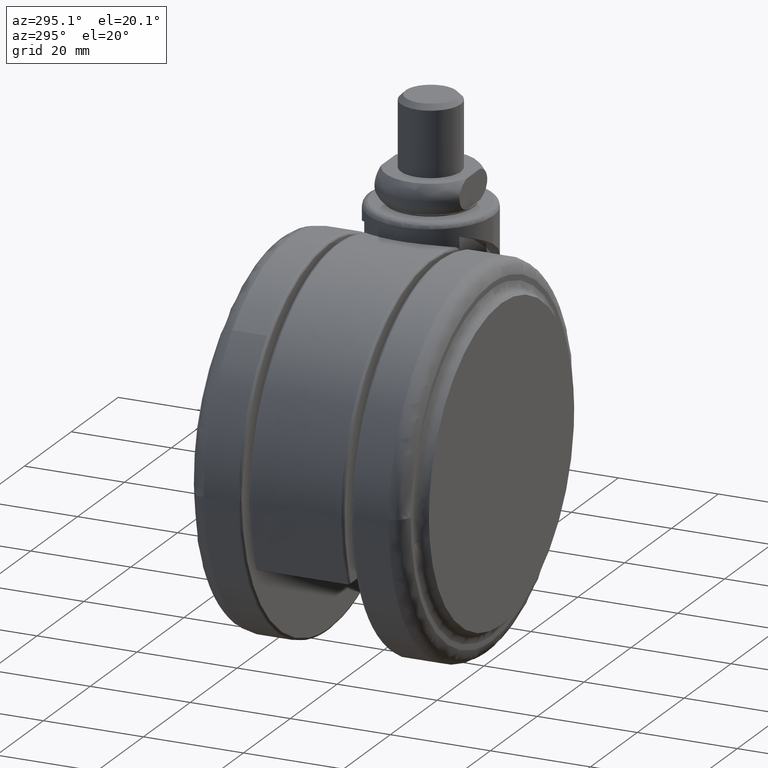
[diagram: clean part render]
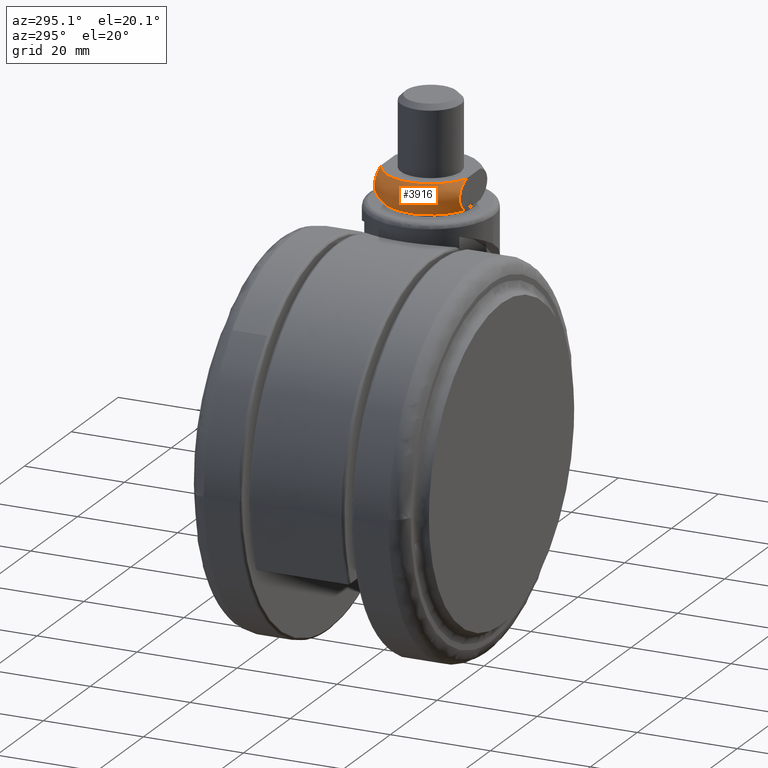
[diagram: same view with one face highlighted and labeled with its STEP entity id]
A machine part, auxiliary view. The second image highlights one B-rep face of the part: STEP entity #3916.
In plain terms, the highlighted face is a freeform B-spline surface patch.
Its self-contained STEP definition (entity closure, byte-faithful):
#3673=CARTESIAN_POINT('',(-2.958037778009130,8.500000000000000,6.500000005047590));
#3674=VERTEX_POINT('',#3673);
#3680=CARTESIAN_POINT('',(-2.958037778009625,-8.499999999999911,6.499999999999620));
#3681=VERTEX_POINT('',#3680);
#3682=CARTESIAN_POINT('',(-2.958037778009625,-8.499999999999911,6.499999999999620));
#3683=CARTESIAN_POINT('',(-3.505191640945327,-8.309661604369689,6.500000000456753));
#3684=CARTESIAN_POINT('',(-4.456791574253676,-7.871449562081987,6.500000001251817));
#3685=CARTESIAN_POINT('',(-5.603591382843556,-7.077992358055911,6.500000002209936));
#3686=CARTESIAN_POINT('',(-6.567442417667633,-6.197171119240892,6.500000003015228));
#3687=CARTESIAN_POINT('',(-7.326306664548474,-5.278412197983465,6.500000003649253));
#3688=CARTESIAN_POINT('',(-8.024343454167111,-4.140781605865873,6.500000004232393));
#3689=CARTESIAN_POINT('',(-8.488137373949472,-3.074735887196934,6.500000004620105));
#3690=CARTESIAN_POINT('',(-8.842811778932871,-1.818496998494626,6.500000004917118));
#3691=CARTESIAN_POINT('',(-9.049761467326716,-0.350737382126485,6.500000005082399));
#3692=CARTESIAN_POINT('',(-8.964676692575551,1.249957576164630,6.500000005036982));
#3693=CARTESIAN_POINT('',(-8.597027895506502,2.774549533199301,6.500000005049102));
#3694=CARTESIAN_POINT('',(-8.104555607089273,3.985623964878834,6.500000005047969));
#3695=CARTESIAN_POINT('',(-7.325349404209156,5.312510051283311,6.500000005047355));
#3696=CARTESIAN_POINT('',(-6.261878011762858,6.550612389649610,6.500000005047541));
#3697=CARTESIAN_POINT('',(-4.743226544974553,7.725153657144978,6.500000005047991));
#3698=CARTESIAN_POINT('',(-3.614657331387783,8.271644136897930,6.500000005046799));
#3699=CARTESIAN_POINT('',(-2.958037778009130,8.500000000000000,6.500000005047590));
#3700=B_SPLINE_CURVE_WITH_KNOTS('',3,(#3682,#3683,#3684,#3685,#3686,#3687,#3688,#3689,#3690,#3691,#3692,#3693,#3694,#3695,#3696,#3697,#3698,#3699),.UNSPECIFIED.,.F.,.U.,(4,1,1,1,1,1,1,1,1,1,1,1,1,1,1,4),(0.000000192246205,1.737942532596673,3.128360514341786,4.171166189166815,5.648475213840698,6.691283131285266,8.168573489920295,9.124498555448156,10.601803637032910,12.600432010111859,13.903903936706360,15.294322892246131,16.510918853109320,18.509625382620261,20.160726363808820,22.246291718154069),.UNSPECIFIED.);
#3701=EDGE_CURVE('',#3681,#3674,#3700,.T.);
#3724=CARTESIAN_POINT('',(-2.958037795423370,8.500000000000000,0.499999999999886));
#3725=VERTEX_POINT('',#3724);
#3731=CARTESIAN_POINT('',(-2.958037795423370,8.500000000000000,0.499999999999886));
#3732=CARTESIAN_POINT('',(-3.073915937857273,8.500000000000002,0.533587851203963));
#3733=CARTESIAN_POINT('',(-3.189350093133369,8.500000000000004,0.570089147688723));
#3734=CARTESIAN_POINT('',(-3.363764921376788,8.500000000000000,0.630558188930237));
#3735=CARTESIAN_POINT('',(-3.423204781769131,8.500000000000000,0.652115154246575));
#3736=CARTESIAN_POINT('',(-3.541172144944814,8.500000000000000,0.696928853799314));
#3737=CARTESIAN_POINT('',(-3.599733891603737,8.499999999999998,0.720194397841021));
#3738=CARTESIAN_POINT('',(-3.890317366614210,8.500000000000000,0.841050817610792));
#3739=CARTESIAN_POINT('',(-4.115739897476825,8.500000000000000,0.952071946800143));
#3740=CARTESIAN_POINT('',(-4.440301742718648,8.499999999999998,1.146224384303286));
#3741=CARTESIAN_POINT('',(-4.546451093267214,8.500000000000000,1.215799044500986));
#3742=CARTESIAN_POINT('',(-4.750164323947764,8.500000000000000,1.363206951449330));
#3743=CARTESIAN_POINT('',(-4.848115662201754,8.500000000000000,1.441236636518708));
#3744=CARTESIAN_POINT('',(-5.035361736356024,8.500000000000000,1.606884606257757));
#3745=CARTESIAN_POINT('',(-5.124662536712388,8.499999999999998,1.694496173552778));
#3746=CARTESIAN_POINT('',(-5.251225510371514,8.500000000000000,1.834097191293195));
#3747=CARTESIAN_POINT('',(-5.292178499869615,8.500000000000000,1.881998460573586));
#3748=CARTESIAN_POINT('',(-5.371411589793596,8.500000000000000,1.980761659915848));
#3749=CARTESIAN_POINT('',(-5.409636509758751,8.500000000000000,2.031584333084656));
#3750=CARTESIAN_POINT('',(-5.518423626446180,8.499999999999998,2.186536424327182));
#3751=CARTESIAN_POINT('',(-5.583681943021650,8.500000000000000,2.293817341105906));
#3752=CARTESIAN_POINT('',(-5.669796615432821,8.500000000000000,2.461186194234179));
#3753=CARTESIAN_POINT('',(-5.696534535762804,8.500000000000000,2.518053040481959));
#3754=CARTESIAN_POINT('',(-5.745857609707072,8.499999999999998,2.634061031895083));
#3755=CARTESIAN_POINT('',(-5.768488455888067,8.500000000000000,2.693337356663643));
#3756=CARTESIAN_POINT('',(-5.829431678743255,8.500000000000002,2.873932852837821));
#3757=CARTESIAN_POINT('',(-5.860117412803001,8.499999999999998,2.995794940712402));
#3758=CARTESIAN_POINT('',(-5.901585193705016,8.500000000000004,3.242451879560652));
#3759=CARTESIAN_POINT('',(-5.912372136831613,8.500000000000000,3.367246009077934));
#3760=CARTESIAN_POINT('',(-5.912904975189392,8.500000000000000,3.556742838181998));
#3761=CARTESIAN_POINT('',(-5.910428107614207,8.500000000000004,3.620586598120842));
#3762=CARTESIAN_POINT('',(-5.900256051658846,8.500000000000000,3.746824879723186));
#3763=CARTESIAN_POINT('',(-5.892586952450842,8.500000000000000,3.809384305717591));
#3764=CARTESIAN_POINT('',(-5.862097551578754,8.500000000000000,3.995441318315418));
#3765=CARTESIAN_POINT('',(-5.831822693052104,8.500000000000000,4.117323608443516));
#3766=CARTESIAN_POINT('',(-5.771989917192673,8.499999999999998,4.297022328916789));
#3767=CARTESIAN_POINT('',(-5.749535112404462,8.499999999999998,4.356625809795292));
#3768=CARTESIAN_POINT('',(-5.700340117657250,8.500000000000004,4.473566489508821));
#3769=CARTESIAN_POINT('',(-5.673659831944459,8.499999999999998,4.530823273085199));
#3770=CARTESIAN_POINT('',(-5.587739676194730,8.500000000000000,4.699167994997492));
#3771=CARTESIAN_POINT('',(-5.522641104173762,8.500000000000000,4.806842305335833));
#3772=CARTESIAN_POINT('',(-5.414264749251034,8.500000000000000,4.962102710888497));
#3773=CARTESIAN_POINT('',(-5.376287817426253,8.499999999999998,5.012882843696532));
#3774=CARTESIAN_POINT('',(-5.297102907597380,8.500000000000004,5.112108384476286));
#3775=CARTESIAN_POINT('',(-5.256168566405393,8.499999999999998,5.160222764856701));
#3776=CARTESIAN_POINT('',(-5.129651449365496,8.500000000000000,5.300418639099336));
#3777=CARTESIAN_POINT('',(-5.040368078529110,8.500000000000004,5.388367938860927));
#3778=CARTESIAN_POINT('',(-4.853152732093221,8.499999999999998,5.554609249842108));
#3779=CARTESIAN_POINT('',(-4.755214510944642,8.500000000000000,5.632894287096397));
#3780=CARTESIAN_POINT('',(-4.551536931601070,8.500000000000002,5.780753380646033));
#3781=CARTESIAN_POINT('',(-4.445342808260227,8.500000000000002,5.850560857465887));
#3782=CARTESIAN_POINT('',(-4.121383280154604,8.500000000000000,6.044936439077503));
#3783=CARTESIAN_POINT('',(-3.897228578177820,8.500000000000000,6.155618972763465));
#3784=CARTESIAN_POINT('',(-3.436441676329940,8.500000000000000,6.348158733785871));
#3785=CARTESIAN_POINT('',(-3.199772547798800,8.500000000000000,6.429930649151293));
#3786=CARTESIAN_POINT('',(-2.958037778009151,8.500000000000000,6.500000005047660));
#3787=B_SPLINE_CURVE_WITH_KNOTS('',3,(#3731,#3732,#3733,#3734,#3735,#3736,#3737,#3738,#3739,#3740,#3741,#3742,#3743,#3744,#3745,#3746,#3747,#3748,#3749,#3750,#3751,#3752,#3753,#3754,#3755,#3756,#3757,#3758,#3759,#3760,#3761,#3762,#3763,#3764,#3765,#3766,#3767,#3768,#3769,#3770,#3771,#3772,#3773,#3774,#3775,#3776,#3777,#3778,#3779,#3780,#3781,#3782,#3783,#3784,#3785,#3786),.UNSPECIFIED.,.F.,.U.,(4,2,2,2,2,2,2,2,2,2,2,2,2,2,2,2,2,2,2,2,2,2,2,2,2,2,2,4),(0.625532572859374,0.640625000000003,0.648437500000003,0.656250000000003,0.687500000000003,0.703125000000003,0.718750000000003,0.734375000000003,0.742187500000003,0.750000000000003,0.765625000000003,0.773437500000003,0.781250000000003,0.796875000000003,0.812500000000002,0.820312500000002,0.828125000000002,0.843750000000002,0.851562500000002,0.859375000000002,0.875000000000002,0.882812500000002,0.890625000000001,0.906250000000001,0.921875000000001,0.937500000000001,0.968750000000000,1.0),.UNSPECIFIED.);
#3788=EDGE_CURVE('',#3725,#3674,#3787,.T.);
#3801=CARTESIAN_POINT('',(-2.958037795423865,-8.499999999999911,0.499999999999886));
#3802=VERTEX_POINT('',#3801);
#3803=CARTESIAN_POINT('',(-2.958037778009625,-8.499999999999911,6.499999999999620));
#3804=CARTESIAN_POINT('',(-3.073915925493143,-8.499999999999911,6.466412152661063));
#3805=CARTESIAN_POINT('',(-3.189350084444000,-8.499999999999909,6.429910855220388));
#3806=CARTESIAN_POINT('',(-3.363764916251169,-8.499999999999911,6.369441812900131));
#3807=CARTESIAN_POINT('',(-3.423204776567423,-8.499999999999911,6.347884847668665));
#3808=CARTESIAN_POINT('',(-3.541172139619513,-8.499999999999911,6.303071148284176));
#3809=CARTESIAN_POINT('',(-3.599733886218533,-8.499999999999909,6.279805604330451));
#3810=CARTESIAN_POINT('',(-3.890317360939851,-8.499999999999909,6.158949185021656));
#3811=CARTESIAN_POINT('',(-4.115739891603287,-8.499999999999909,6.047928056266504));
#3812=CARTESIAN_POINT('',(-4.440301736621374,-8.499999999999908,5.853775619567351));
#3813=CARTESIAN_POINT('',(-4.546451087139874,-8.499999999999909,5.784200959645370));
#3814=CARTESIAN_POINT('',(-4.750164317834042,-8.499999999999913,5.636793053261788));
#3815=CARTESIAN_POINT('',(-4.848115656113413,-8.499999999999913,5.558763368495368));
#3816=CARTESIAN_POINT('',(-5.035361730365127,-8.499999999999909,5.393115399413929));
#3817=CARTESIAN_POINT('',(-5.124662530793428,-8.499999999999911,5.305503832473425));
#3818=CARTESIAN_POINT('',(-5.251225504606988,-8.499999999999913,5.165902815316327));
#3819=CARTESIAN_POINT('',(-5.292178494164379,-8.499999999999913,5.118001546239029));
#3820=CARTESIAN_POINT('',(-5.371411584225507,-8.499999999999911,5.019238347323518));
#3821=CARTESIAN_POINT('',(-5.409636504314134,-8.499999999999915,4.968415674318773));
#3822=CARTESIAN_POINT('',(-5.518423621376219,-8.499999999999911,4.813463583597533));
#3823=CARTESIAN_POINT('',(-5.583681938233020,-8.499999999999911,4.706182667183615));
#3824=CARTESIAN_POINT('',(-5.669796611129951,-8.499999999999911,4.538813814637475));
#3825=CARTESIAN_POINT('',(-5.696534531632565,-8.499999999999911,4.481946968589599));
#3826=CARTESIAN_POINT('',(-5.745857605947563,-8.499999999999913,4.365938977590242));
#3827=CARTESIAN_POINT('',(-5.768488452305270,-8.499999999999911,4.306662653102996));
#3828=CARTESIAN_POINT('',(-5.829431675890957,-8.499999999999911,4.126067157315790));
#3829=CARTESIAN_POINT('',(-5.860117410461027,-8.499999999999911,4.004205069702625));
#3830=CARTESIAN_POINT('',(-5.901585192455559,-8.499999999999911,3.757548131387801));
#3831=CARTESIAN_POINT('',(-5.912372136164131,-8.499999999999911,3.632754002142479));
#3832=CARTESIAN_POINT('',(-5.912904975474825,-8.499999999999911,3.443257173458157));
#3833=CARTESIAN_POINT('',(-5.910428108233816,-8.499999999999911,3.379413413626655));
#3834=CARTESIAN_POINT('',(-5.900256052936479,-8.499999999999911,3.253175132070983));
#3835=CARTESIAN_POINT('',(-5.892586954058447,-8.499999999999911,3.190615706099708));
#3836=CARTESIAN_POINT('',(-5.862097554184662,-8.499999999999911,3.004558693569443));
#3837=CARTESIAN_POINT('',(-5.831822696334739,-8.499999999999913,2.882676403483967));
#3838=CARTESIAN_POINT('',(-5.771989921527372,-8.499999999999909,2.702977683066605));
#3839=CARTESIAN_POINT('',(-5.749535117106590,-8.499999999999909,2.643374202221712));
#3840=CARTESIAN_POINT('',(-5.700340122999611,-8.499999999999913,2.526433522349689));
#3841=CARTESIAN_POINT('',(-5.673659837603593,-8.499999999999909,2.469176738696017));
#3842=CARTESIAN_POINT('',(-5.587739682799143,-8.499999999999911,2.300832016554765));
#3843=CARTESIAN_POINT('',(-5.522641111401863,-8.499999999999913,2.193157706067557));
#3844=CARTESIAN_POINT('',(-5.414264757419478,-8.499999999999913,2.037897300288808));
#3845=CARTESIAN_POINT('',(-5.376287825953030,-8.499999999999909,1.987117167458840));
#3846=CARTESIAN_POINT('',(-5.297102916638342,-8.499999999999913,1.887891626381422));
#3847=CARTESIAN_POINT('',(-5.256168575698879,-8.499999999999909,1.839777245857281));
#3848=CARTESIAN_POINT('',(-5.129651459406492,-8.499999999999911,1.699581371194687));
#3849=CARTESIAN_POINT('',(-5.040368089055241,-8.499999999999913,1.611632071167871));
#3850=CARTESIAN_POINT('',(-4.853152743575935,-8.499999999999913,1.445390759671515));
#3851=CARTESIAN_POINT('',(-4.755214522898698,-8.499999999999913,1.367105722167396));
#3852=CARTESIAN_POINT('',(-4.551536944491445,-8.499999999999913,1.219246628125215));
#3853=CARTESIAN_POINT('',(-4.445342821576177,-8.499999999999913,1.149439151030871));
#3854=CARTESIAN_POINT('',(-4.121383294471096,-8.499999999999911,0.955063568496992));
#3855=CARTESIAN_POINT('',(-3.897228593132700,-8.499999999999913,0.844381034262336));
#3856=CARTESIAN_POINT('',(-3.436441692533577,-8.499999999999911,0.651841272207276));
#3857=CARTESIAN_POINT('',(-3.199772564612163,-8.499999999999911,0.570069356359369));
#3858=CARTESIAN_POINT('',(-2.958037795423871,-8.499999999999911,0.499999999999876));
#3859=B_SPLINE_CURVE_WITH_KNOTS('',3,(#3803,#3804,#3805,#3806,#3807,#3808,#3809,#3810,#3811,#3812,#3813,#3814,#3815,#3816,#3817,#3818,#3819,#3820,#3821,#3822,#3823,#3824,#3825,#3826,#3827,#3828,#3829,#3830,#3831,#3832,#3833,#3834,#3835,#3836,#3837,#3838,#3839,#3840,#3841,#3842,#3843,#3844,#3845,#3846,#3847,#3848,#3849,#3850,#3851,#3852,#3853,#3854,#3855,#3856,#3857,#3858),.UNSPECIFIED.,.F.,.U.,(4,2,2,2,2,2,2,2,2,2,2,2,2,2,2,2,2,2,2,2,2,2,2,2,2,2,2,4),(0.625532572360595,0.640625000000001,0.648437500000001,0.656250000000001,0.687500000000001,0.703125000000000,0.718750000000000,0.734375000000000,0.742187500000000,0.750000000000000,0.765625000000000,0.773437500000000,0.781250000000000,0.796875000000000,0.812500000000000,0.820312500000000,0.828125000000000,0.843750000000000,0.851562500000000,0.859375000000000,0.875000000000000,0.882812500000000,0.890625000000000,0.906250000000000,0.921875000000000,0.937500000000000,0.968750000000000,1.0),.UNSPECIFIED.);
#3860=EDGE_CURVE('',#3681,#3802,#3859,.T.);
#3870=CARTESIAN_POINT('',(-1.893522943159777,-8.565286967611957,6.686540150704952));
#3871=CARTESIAN_POINT('',(-8.772090399318495,-7.044646113013704,6.686540150704955));
#3872=CARTESIAN_POINT('',(-8.772090399318495,5.371179E-016,6.686540150704953));
#3873=CARTESIAN_POINT('',(-8.772090399318497,7.044646546076263,6.686540150704954));
#3874=CARTESIAN_POINT('',(-1.893522429030679,8.565287081270160,6.686540150704954));
#3875=CARTESIAN_POINT('',(-2.800044828491198,-12.665908044495870,3.499999858160476));
#3876=CARTESIAN_POINT('',(-12.971718376267098,-10.417262166561560,3.499999858160474));
#3877=CARTESIAN_POINT('',(-12.971718376267097,7.942624E-016,3.499999858160474));
#3878=CARTESIAN_POINT('',(-12.971718376267095,10.417262806952310,3.499999858160473));
#3879=CARTESIAN_POINT('',(-2.800044068223396,12.665908212567796,3.499999858160475));
#3880=CARTESIAN_POINT('',(-1.893522913673375,-8.565286834231214,0.313459745646348));
#3881=CARTESIAN_POINT('',(-8.772090262717361,-7.044646003312755,0.313459745646348));
#3882=CARTESIAN_POINT('',(-8.772090262717358,5.371179E-016,0.313459745646348));
#3883=CARTESIAN_POINT('',(-8.772090262717359,7.044646436375306,0.313459745646348));
#3884=CARTESIAN_POINT('',(-1.893522399544285,8.565286947889417,0.313459745646348));
#3892=(BOUNDED_SURFACE()B_SPLINE_SURFACE(2,2,((#3870,#3875,#3880),(#3871,#3876,#3881),(#3872,#3877,#3882),(#3873,#3878,#3883),(#3874,#3879,#3884)),.UNSPECIFIED.,.F.,.F.,.U.)B_SPLINE_SURFACE_WITH_KNOTS((3,2,3),(3,3),(0.0,14.571171034592959,29.142342758656611),(0.0,7.944203146601529),.UNSPECIFIED.)GEOMETRIC_REPRESENTATION_ITEM()RATIONAL_B_SPLINE_SURFACE(((0.895075252538343,0.541037714516430,0.895075271589651),(0.706939719277996,0.427317199234787,0.706939734324918),(0.918443564582253,0.555162938182808,0.918443584130947),(0.706939709270173,0.427317193185452,0.706939724317094),(0.895075270342532,0.541037725278361,0.895075289393841)))REPRESENTATION_ITEM('')SURFACE());
#3893=ORIENTED_EDGE('',*,*,#3788,.F.);
#3894=CARTESIAN_POINT('',(-2.958037795423865,-8.499999999999911,0.499999999999886));
#3895=CARTESIAN_POINT('',(-3.669403364643958,-8.252669526457648,0.499999999999888));
#3896=CARTESIAN_POINT('',(-4.924661341597816,-7.629706589530970,0.499999999999886));
#3897=CARTESIAN_POINT('',(-6.449700770111638,-6.365562460690336,0.499999999999885));
#3898=CARTESIAN_POINT('',(-7.633087837431733,-4.889787727895823,0.499999999999889));
#3899=CARTESIAN_POINT('',(-8.461885940093264,-3.251303545487716,0.499999999999886));
#3900=CARTESIAN_POINT('',(-8.934402079378279,-1.479833128288369,0.499999999999883));
#3901=CARTESIAN_POINT('',(-9.040491155154127,0.088069970910539,0.499999999999892));
#3902=CARTESIAN_POINT('',(-8.883763031121939,1.706321352385133,0.499999999999892));
#3903=CARTESIAN_POINT('',(-8.409373395623295,3.418793354960443,0.499999999999877));
#3904=CARTESIAN_POINT('',(-7.504571524778045,5.085617955522995,0.499999999999882));
#3905=CARTESIAN_POINT('',(-6.261169297686958,6.547378114861822,0.499999999999899));
#3906=CARTESIAN_POINT('',(-4.796803457512451,7.702781357474941,0.499999999999878));
#3907=CARTESIAN_POINT('',(-3.587279561743063,8.281134107605093,0.499999999999888));
#3908=CARTESIAN_POINT('',(-2.958037795423370,8.500000000000000,0.499999999999886));
#3909=B_SPLINE_CURVE_WITH_KNOTS('',3,(#3894,#3895,#3896,#3897,#3898,#3899,#3900,#3901,#3902,#3903,#3904,#3905,#3906,#3907,#3908),.UNSPECIFIED.,.F.,.U.,(4,1,1,1,1,1,1,1,1,1,1,1,4),(-0.000000089918032,2.259346336328871,4.171166224219366,5.909177408758236,7.907870272334058,9.645885042456959,11.383812275682461,12.600432686034550,14.512227423983120,16.684720776306278,18.248927125005171,20.247647279155789,22.246293124495601),.UNSPECIFIED.);
#3910=EDGE_CURVE('',#3802,#3725,#3909,.T.);
#3911=ORIENTED_EDGE('',*,*,#3910,.F.);
#3912=ORIENTED_EDGE('',*,*,#3860,.F.);
#3913=ORIENTED_EDGE('',*,*,#3701,.T.);
#3914=EDGE_LOOP('',(#3893,#3911,#3912,#3913));
#3915=FACE_OUTER_BOUND('',#3914,.T.);
#3916=ADVANCED_FACE('',(#3915),#3892,.T.);